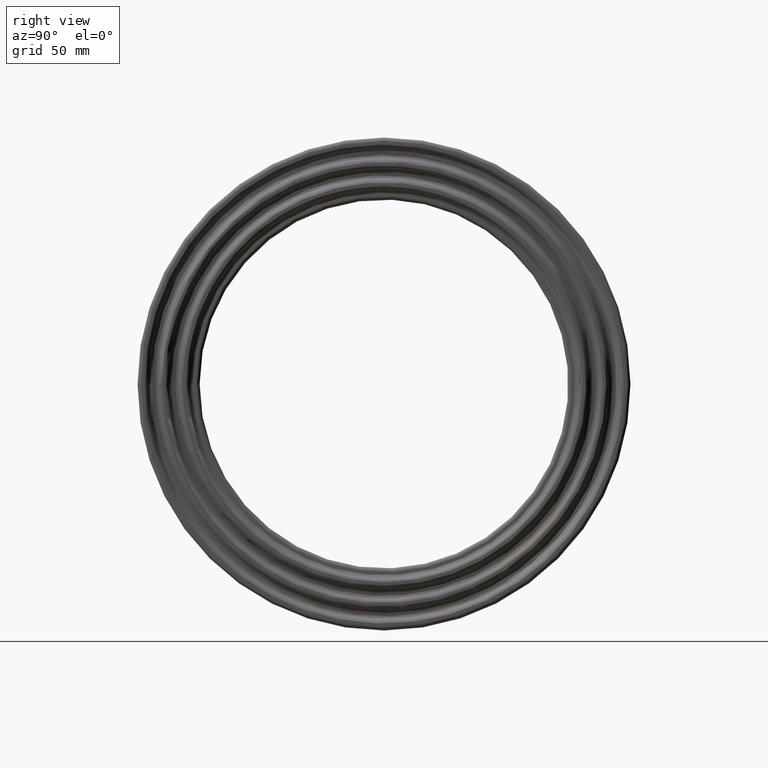
[diagram: clean part render]
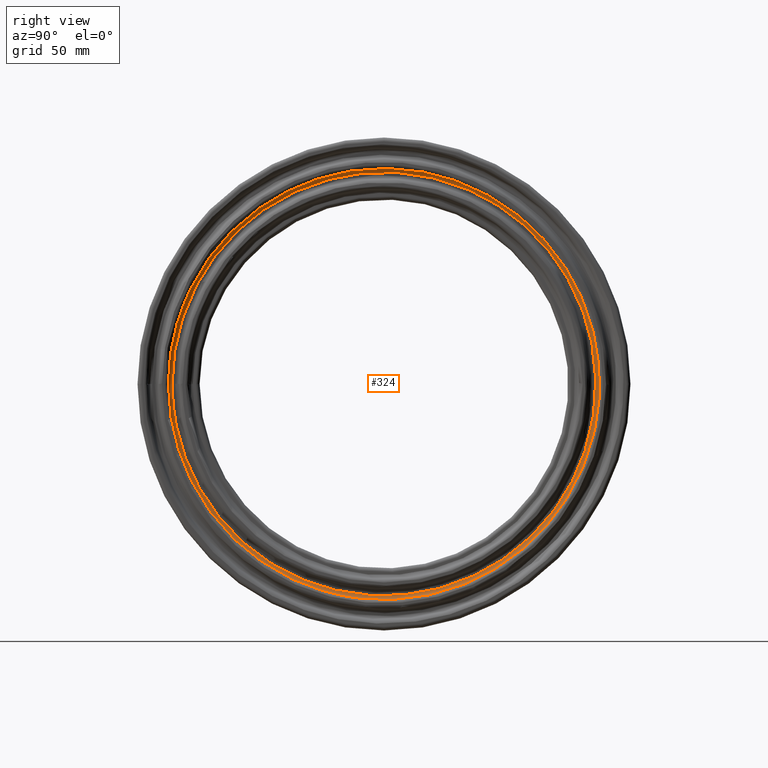
[diagram: same view with one face highlighted and labeled with its STEP entity id]
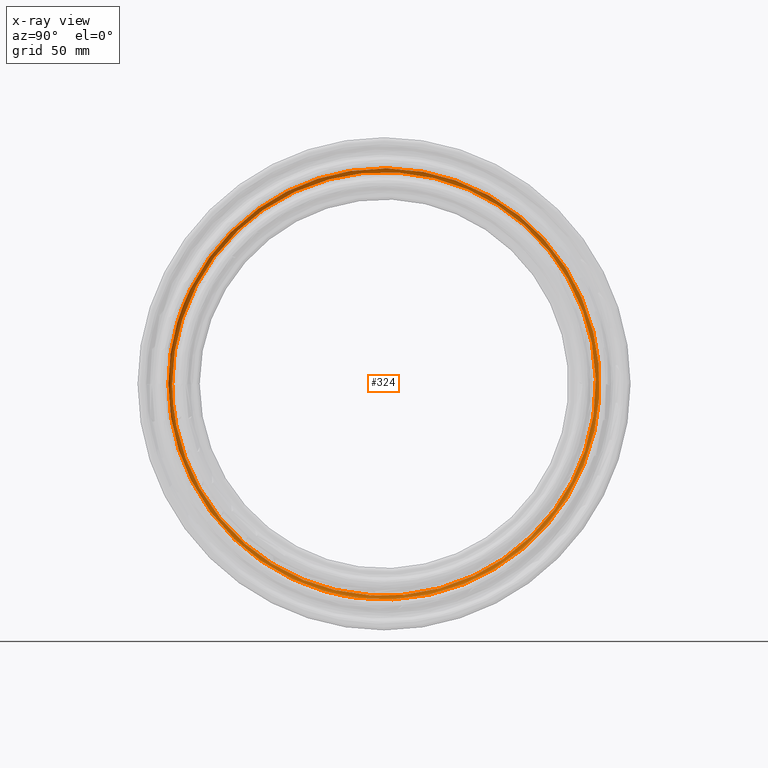
[diagram: x-ray of the same camera — body ghosted, the highlighted face saturated]
A machine part, right view. The second image highlights one B-rep face of the part: STEP entity #324.
The next image is the same camera in x-ray: the body ghosted, the highlighted face saturated — about 0% of this face is hidden behind the body in this view.
In plain terms, the highlighted face is a freeform B-spline surface patch.
Its self-contained STEP definition (entity closure, byte-faithful):
#19=B_SPLINE_SURFACE_WITH_KNOTS('',3,3,((#2032,#2033,#2034,#2035,#2036,
#2037,#2038,#2039,#2040,#2041,#2042,#2043,#2044,#2045,#2046,#2047,#2048,
#2049,#2050,#2051,#2052,#2053,#2054,#2055,#2056,#2057,#2058,#2059,#2060,
#2061,#2062,#2063,#2064,#2065,#2066,#2067,#2068,#2069,#2070,#2071,#2072,
#2073,#2074,#2075,#2076,#2077,#2078,#2079,#2080,#2081,#2082,#2083,#2084),
(#2085,#2086,#2087,#2088,#2089,#2090,#2091,#2092,#2093,#2094,#2095,#2096,
#2097,#2098,#2099,#2100,#2101,#2102,#2103,#2104,#2105,#2106,#2107,#2108,
#2109,#2110,#2111,#2112,#2113,#2114,#2115,#2116,#2117,#2118,#2119,#2120,
#2121,#2122,#2123,#2124,#2125,#2126,#2127,#2128,#2129,#2130,#2131,#2132,
#2133,#2134,#2135,#2136,#2137),(#2138,#2139,#2140,#2141,#2142,#2143,#2144,
#2145,#2146,#2147,#2148,#2149,#2150,#2151,#2152,#2153,#2154,#2155,#2156,
#2157,#2158,#2159,#2160,#2161,#2162,#2163,#2164,#2165,#2166,#2167,#2168,
#2169,#2170,#2171,#2172,#2173,#2174,#2175,#2176,#2177,#2178,#2179,#2180,
#2181,#2182,#2183,#2184,#2185,#2186,#2187,#2188,#2189,#2190),(#2191,#2192,
#2193,#2194,#2195,#2196,#2197,#2198,#2199,#2200,#2201,#2202,#2203,#2204,
#2205,#2206,#2207,#2208,#2209,#2210,#2211,#2212,#2213,#2214,#2215,#2216,
#2217,#2218,#2219,#2220,#2221,#2222,#2223,#2224,#2225,#2226,#2227,#2228,
#2229,#2230,#2231,#2232,#2233,#2234,#2235,#2236,#2237,#2238,#2239,#2240,
#2241,#2242,#2243),(#2244,#2245,#2246,#2247,#2248,#2249,#2250,#2251,#2252,
#2253,#2254,#2255,#2256,#2257,#2258,#2259,#2260,#2261,#2262,#2263,#2264,
#2265,#2266,#2267,#2268,#2269,#2270,#2271,#2272,#2273,#2274,#2275,#2276,
#2277,#2278,#2279,#2280,#2281,#2282,#2283,#2284,#2285,#2286,#2287,#2288,
#2289,#2290,#2291,#2292,#2293,#2294,#2295,#2296)),.UNSPECIFIED.,.F.,.T.,
 .F.,(4,1,4),(4,1,1,1,1,1,1,1,1,1,1,1,1,1,1,1,1,1,1,1,1,1,1,1,1,1,1,1,1,
1,1,1,1,1,1,1,1,1,1,1,1,1,1,1,1,1,1,1,1,1,4),(0.,0.571428571428571,1.),
(34.0904277767041,35.3079430544436,36.525458332183,37.7429736099224,38.9604888876619,
41.3955194431407,42.6130347208802,43.8305499986196,45.4539037022722,47.0772574059248,
50.3239648132299,51.9473185168825,53.5706722205351,55.1940259241876,56.8173796278402,
58.4407333314928,60.0640870351454,61.687440738798,63.3107944424505,66.5575018497557,
68.5866939793214,68.9925324052346,69.8042092570608,71.4275629607134,73.050916664366,
73.9640531226706,75.4859472198449,77.9209777753237,80.3560083308026,80.8125765599549,
81.573523608542,82.7910388862815,84.0085541640209,85.2260694417603,87.6610999972392,
88.1176682263915,88.8786152749786,90.0961305527181,90.7048881915878,91.6180246498923,
92.5311611081969,93.7486763859364,94.9661916636758,95.8793281219804,97.4012222191547,
97.7056010385895,98.6187374968941,99.8362527746335,101.053768052373,101.358146871808,
102.271283330112),.UNSPECIFIED.);
#32=B_SPLINE_CURVE_WITH_KNOTS('',3,(#1979,#1980,#1981,#1982,#1983,#1984,
#1985,#1986,#1987,#1988,#1989,#1990,#1991,#1992,#1993,#1994,#1995,#1996,
#1997,#1998,#1999,#2000,#2001,#2002,#2003,#2004,#2005,#2006,#2007,#2008,
#2009,#2010,#2011,#2012,#2013,#2014,#2015,#2016,#2017,#2018,#2019,#2020,
#2021,#2022,#2023,#2024,#2025,#2026,#2027,#2028,#2029,#2030,#2031),
 .UNSPECIFIED.,.T.,.F.,(4,1,1,1,1,1,1,1,1,1,1,1,1,1,1,1,1,1,1,1,1,1,1,1,
1,1,1,1,1,1,1,1,1,1,1,1,1,1,1,1,1,1,1,1,1,1,1,1,1,1,4),(-102.271283330112,
-101.358146871808,-101.053768052373,-99.8362527746335,-98.6187374968941,
-97.7056010385895,-97.4012222191547,-95.8793281219804,-94.9661916636758,
-93.7486763859364,-92.5311611081969,-91.6180246498923,-90.7048881915878,
-90.0961305527181,-88.8786152749786,-88.1176682263915,-87.6610999972392,
-85.2260694417603,-84.0085541640209,-82.7910388862815,-81.573523608542,
-80.8125765599549,-80.3560083308026,-77.9209777753237,-75.4859472198449,
-73.9640531226706,-73.050916664366,-71.4275629607134,-69.8042092570608,
-68.9925324052346,-68.5866939793214,-66.5575018497557,-63.3107944424505,
-61.687440738798,-60.0640870351454,-58.4407333314928,-56.8173796278402,
-55.1940259241876,-53.5706722205351,-51.9473185168825,-50.3239648132299,
-47.0772574059248,-45.4539037022722,-43.8305499986196,-42.6130347208802,
-41.3955194431407,-38.9604888876619,-37.7429736099224,-36.525458332183,
-35.3079430544436,-34.0904277767041),.UNSPECIFIED.);
#33=B_SPLINE_CURVE_WITH_KNOTS('',3,(#2299,#2300,#2301,#2302,#2303,#2304,
#2305,#2306,#2307,#2308,#2309,#2310,#2311,#2312,#2313,#2314,#2315,#2316,
#2317,#2318,#2319,#2320,#2321,#2322,#2323,#2324,#2325,#2326,#2327,#2328,
#2329,#2330,#2331,#2332,#2333,#2334,#2335,#2336,#2337,#2338,#2339,#2340,
#2341,#2342,#2343,#2344,#2345,#2346,#2347,#2348,#2349,#2350,#2351),
 .UNSPECIFIED.,.T.,.F.,(4,1,1,1,1,1,1,1,1,1,1,1,1,1,1,1,1,1,1,1,1,1,1,1,
1,1,1,1,1,1,1,1,1,1,1,1,1,1,1,1,1,1,1,1,1,1,1,1,1,1,4),(34.0904277767041,
35.3079430544436,36.525458332183,37.7429736099224,38.9604888876619,41.3955194431407,
42.6130347208802,43.8305499986196,45.4539037022722,47.0772574059248,50.3239648132299,
51.9473185168825,53.5706722205351,55.1940259241876,56.8173796278402,58.4407333314928,
60.0640870351454,61.687440738798,63.3107944424505,66.5575018497557,68.5866939793214,
68.9925324052346,69.8042092570608,71.4275629607134,73.050916664366,73.9640531226706,
75.4859472198449,77.9209777753237,80.3560083308026,80.8125765599549,81.573523608542,
82.7910388862815,84.0085541640209,85.2260694417603,87.6610999972392,88.1176682263915,
88.8786152749786,90.0961305527181,90.7048881915878,91.6180246498923,92.5311611081969,
93.7486763859364,94.9661916636758,95.8793281219804,97.4012222191547,97.7056010385895,
98.6187374968941,99.8362527746335,101.053768052373,101.358146871808,102.271283330112),
 .UNSPECIFIED.);
#85=FACE_OUTER_BOUND('',#128,.T.);
#128=EDGE_LOOP('',(#275,#276,#277,#278));
#162=CIRCLE('',#367,2.);
#189=VERTEX_POINT('',#1978);
#190=VERTEX_POINT('',#2297);
#221=EDGE_CURVE('',#189,#189,#32,.T.);
#222=EDGE_CURVE('',#190,#189,#162,.T.);
#223=EDGE_CURVE('',#190,#190,#33,.T.);
#275=ORIENTED_EDGE('',*,*,#222,.T.);
#276=ORIENTED_EDGE('',*,*,#221,.T.);
#277=ORIENTED_EDGE('',*,*,#222,.F.);
#278=ORIENTED_EDGE('',*,*,#223,.T.);
#324=ADVANCED_FACE('',(#85),#19,.T.);
#367=AXIS2_PLACEMENT_3D('',#2298,#447,#448);
#447=DIRECTION('center_axis',(0.,0.000811828910619315,-0.999999670466856));
#448=DIRECTION('ref_axis',(-0.287499999999997,-0.957780322104062,-0.000777554011736176));
#1978=CARTESIAN_POINT('',(111.15,-109.168841474338,-0.0886264508534605));
#1979=CARTESIAN_POINT('Ctrl Pts',(111.15,-109.16887591291,-0.0895965793287595));
#1980=CARTESIAN_POINT('Ctrl Pts',(111.15,-109.171631321727,2.96140961954504));
#1981=CARTESIAN_POINT('Ctrl Pts',(111.15,-109.004792948213,7.0175129122078));
#1982=CARTESIAN_POINT('Ctrl Pts',(111.15,-108.214436784486,15.1470235877692));
#1983=CARTESIAN_POINT('Ctrl Pts',(111.15,-106.679459658127,24.2482437736506));
#1984=CARTESIAN_POINT('Ctrl Pts',(111.15,-103.559112007756,35.0999990597832));
#1985=CARTESIAN_POINT('Ctrl Pts',(111.15,-100.551405436859,42.6687414845524));
#1986=CARTESIAN_POINT('Ctrl Pts',(111.15,-96.709254301766,50.9631286523638));
#1987=CARTESIAN_POINT('Ctrl Pts',(111.15,-92.1420336413871,58.9867920651236));
#1988=CARTESIAN_POINT('Ctrl Pts',(111.15,-84.8808077823255,68.9340455537768));
#1989=CARTESIAN_POINT('Ctrl Pts',(111.15,-77.3948497113888,77.3145567069677));
#1990=CARTESIAN_POINT('Ctrl Pts',(111.15,-69.066058781977,84.7710607713095));
#1991=CARTESIAN_POINT('Ctrl Pts',(111.15,-60.7844068656253,90.8387780654039));
#1992=CARTESIAN_POINT('Ctrl Pts',(111.15,-53.7876253662689,95.103383610369));
#1993=CARTESIAN_POINT('Ctrl Pts',(111.15,-45.6015238905392,99.3351265943354));
#1994=CARTESIAN_POINT('Ctrl Pts',(111.15,-37.6288582107189,102.640937455331));
#1995=CARTESIAN_POINT('Ctrl Pts',(111.15,-29.8363051923592,105.073551239788));
#1996=CARTESIAN_POINT('Ctrl Pts',(111.15,-17.9053212126133,108.073474884191));
#1997=CARTESIAN_POINT('Ctrl Pts',(111.15,-4.09296624297072,109.624520185606));
#1998=CARTESIAN_POINT('Ctrl Pts',(111.15,12.1474790744606,108.719164500908));
#1999=CARTESIAN_POINT('Ctrl Pts',(111.15,24.3144827624396,106.666244799854));
#2000=CARTESIAN_POINT('Ctrl Pts',(111.15,34.6533144891553,103.685292905554));
#2001=CARTESIAN_POINT('Ctrl Pts',(111.15,42.2396793899263,100.726071712331));
#2002=CARTESIAN_POINT('Ctrl Pts',(111.15,53.3354144125283,95.6891300776241));
#2003=CARTESIAN_POINT('Ctrl Pts',(111.15,68.6861442492095,86.0318606918334));
#2004=CARTESIAN_POINT('Ctrl Pts',(111.15,83.8290461583626,70.8839953486793));
#2005=CARTESIAN_POINT('Ctrl Pts',(111.15,93.1829519940372,57.3337550858414));
#2006=CARTESIAN_POINT('Ctrl Pts',(111.15,99.6014552819226,45.3024599026849));
#2007=CARTESIAN_POINT('Ctrl Pts',(111.15,104.687630762219,32.3644484848804));
#2008=CARTESIAN_POINT('Ctrl Pts',(111.15,107.752156601661,18.9839568497214));
#2009=CARTESIAN_POINT('Ctrl Pts',(111.15,108.814094828951,9.48564711740224));
#2010=CARTESIAN_POINT('Ctrl Pts',(111.15,109.422117919237,-1.34366554618123));
#2011=CARTESIAN_POINT('Ctrl Pts',(111.15,108.358370742038,-20.3899659848908));
#2012=CARTESIAN_POINT('Ctrl Pts',(111.15,101.526208206616,-42.6354029094756));
#2013=CARTESIAN_POINT('Ctrl Pts',(111.15,90.6689184932715,-61.5376257442843));
#2014=CARTESIAN_POINT('Ctrl Pts',(111.15,80.403213928584,-74.4491353992946));
#2015=CARTESIAN_POINT('Ctrl Pts',(111.15,68.5045660594396,-85.5152466485039));
#2016=CARTESIAN_POINT('Ctrl Pts',(111.15,54.9239507164761,-94.8291793569609));
#2017=CARTESIAN_POINT('Ctrl Pts',(111.15,40.157429046716,-101.943661568741));
#2018=CARTESIAN_POINT('Ctrl Pts',(111.15,24.6097107524258,-106.786117798739));
#2019=CARTESIAN_POINT('Ctrl Pts',(111.15,8.27612409188528,-109.25750009136));
#2020=CARTESIAN_POINT('Ctrl Pts',(111.15,-13.4184792688284,-109.30402582933));
#2021=CARTESIAN_POINT('Ctrl Pts',(111.15,-35.0532223187035,-104.401784084591));
#2022=CARTESIAN_POINT('Ctrl Pts',(111.15,-54.611633262714,-94.9858590797643));
#2023=CARTESIAN_POINT('Ctrl Pts',(111.15,-67.1164071878208,-86.514870850833));
#2024=CARTESIAN_POINT('Ctrl Pts',(111.15,-77.2792388215684,-77.4215567204984));
#2025=CARTESIAN_POINT('Ctrl Pts',(111.15,-88.1411809633085,-65.3246056855826));
#2026=CARTESIAN_POINT('Ctrl Pts',(111.15,-96.9806857545178,-51.2892190430878));
#2027=CARTESIAN_POINT('Ctrl Pts',(111.15,-103.208770295654,-36.2597169320003));
#2028=CARTESIAN_POINT('Ctrl Pts',(111.15,-106.626682831724,-24.4845972595928));
#2029=CARTESIAN_POINT('Ctrl Pts',(111.15,-108.703154939149,-12.3253679681634));
#2030=CARTESIAN_POINT('Ctrl Pts',(111.15,-109.165202034488,-4.15760484449382));
#2031=CARTESIAN_POINT('Ctrl Pts',(111.15,-109.16887591291,-0.0895965793287595));
#2032=CARTESIAN_POINT('Ctrl Pts',(111.15,-109.16887591291,-0.0895965793287595));
#2033=CARTESIAN_POINT('Ctrl Pts',(111.15,-109.165202034488,-4.15760484449382));
#2034=CARTESIAN_POINT('Ctrl Pts',(111.15,-108.703154939149,-12.3253679681634));
#2035=CARTESIAN_POINT('Ctrl Pts',(111.15,-106.626682831724,-24.4845972595928));
#2036=CARTESIAN_POINT('Ctrl Pts',(111.15,-103.208770295654,-36.2597169320003));
#2037=CARTESIAN_POINT('Ctrl Pts',(111.15,-96.9806857545178,-51.2892190430878));
#2038=CARTESIAN_POINT('Ctrl Pts',(111.15,-88.1411809633085,-65.3246056855826));
#2039=CARTESIAN_POINT('Ctrl Pts',(111.15,-77.2792388215684,-77.4215567204984));
#2040=CARTESIAN_POINT('Ctrl Pts',(111.15,-67.1164071878208,-86.514870850833));
#2041=CARTESIAN_POINT('Ctrl Pts',(111.15,-54.611633262714,-94.9858590797643));
#2042=CARTESIAN_POINT('Ctrl Pts',(111.15,-35.0532223187035,-104.401784084591));
#2043=CARTESIAN_POINT('Ctrl Pts',(111.15,-13.4184792688284,-109.30402582933));
#2044=CARTESIAN_POINT('Ctrl Pts',(111.15,8.27612409188528,-109.25750009136));
#2045=CARTESIAN_POINT('Ctrl Pts',(111.15,24.6097107524258,-106.786117798739));
#2046=CARTESIAN_POINT('Ctrl Pts',(111.15,40.157429046716,-101.943661568741));
#2047=CARTESIAN_POINT('Ctrl Pts',(111.15,54.9239507164761,-94.8291793569609));
#2048=CARTESIAN_POINT('Ctrl Pts',(111.15,68.5045660594396,-85.5152466485039));
#2049=CARTESIAN_POINT('Ctrl Pts',(111.15,80.403213928584,-74.4491353992946));
#2050=CARTESIAN_POINT('Ctrl Pts',(111.15,90.6689184932715,-61.5376257442843));
#2051=CARTESIAN_POINT('Ctrl Pts',(111.15,101.526208206616,-42.6354029094756));
#2052=CARTESIAN_POINT('Ctrl Pts',(111.15,108.358370742038,-20.3899659848908));
#2053=CARTESIAN_POINT('Ctrl Pts',(111.15,109.422117919237,-1.34366554618123));
#2054=CARTESIAN_POINT('Ctrl Pts',(111.15,108.814094828951,9.48564711740224));
#2055=CARTESIAN_POINT('Ctrl Pts',(111.15,107.752156601661,18.9839568497214));
#2056=CARTESIAN_POINT('Ctrl Pts',(111.15,104.687630762219,32.3644484848804));
#2057=CARTESIAN_POINT('Ctrl Pts',(111.15,99.6014552819226,45.3024599026849));
#2058=CARTESIAN_POINT('Ctrl Pts',(111.15,93.1829519940372,57.3337550858414));
#2059=CARTESIAN_POINT('Ctrl Pts',(111.15,83.8290461583626,70.8839953486793));
#2060=CARTESIAN_POINT('Ctrl Pts',(111.15,68.6861442492095,86.0318606918334));
#2061=CARTESIAN_POINT('Ctrl Pts',(111.15,53.3354144125283,95.6891300776241));
#2062=CARTESIAN_POINT('Ctrl Pts',(111.15,42.2396793899263,100.726071712331));
#2063=CARTESIAN_POINT('Ctrl Pts',(111.15,34.6533144891553,103.685292905554));
#2064=CARTESIAN_POINT('Ctrl Pts',(111.15,24.3144827624396,106.666244799854));
#2065=CARTESIAN_POINT('Ctrl Pts',(111.15,12.1474790744606,108.719164500908));
#2066=CARTESIAN_POINT('Ctrl Pts',(111.15,-4.09296624297072,109.624520185606));
#2067=CARTESIAN_POINT('Ctrl Pts',(111.15,-17.9053212126133,108.073474884191));
#2068=CARTESIAN_POINT('Ctrl Pts',(111.15,-29.8363051923592,105.073551239788));
#2069=CARTESIAN_POINT('Ctrl Pts',(111.15,-37.6288582107189,102.640937455331));
#2070=CARTESIAN_POINT('Ctrl Pts',(111.15,-45.6015238905392,99.3351265943354));
#2071=CARTESIAN_POINT('Ctrl Pts',(111.15,-53.7876253662689,95.103383610369));
#2072=CARTESIAN_POINT('Ctrl Pts',(111.15,-60.7844068656253,90.8387780654039));
#2073=CARTESIAN_POINT('Ctrl Pts',(111.15,-69.066058781977,84.7710607713095));
#2074=CARTESIAN_POINT('Ctrl Pts',(111.15,-77.3948497113888,77.3145567069677));
#2075=CARTESIAN_POINT('Ctrl Pts',(111.15,-84.8808077823255,68.9340455537768));
#2076=CARTESIAN_POINT('Ctrl Pts',(111.15,-92.1420336413871,58.9867920651236));
#2077=CARTESIAN_POINT('Ctrl Pts',(111.15,-96.709254301766,50.9631286523638));
#2078=CARTESIAN_POINT('Ctrl Pts',(111.15,-100.551405436859,42.6687414845524));
#2079=CARTESIAN_POINT('Ctrl Pts',(111.15,-103.559112007756,35.0999990597832));
#2080=CARTESIAN_POINT('Ctrl Pts',(111.15,-106.679459658127,24.2482437736506));
#2081=CARTESIAN_POINT('Ctrl Pts',(111.15,-108.214436784486,15.1470235877692));
#2082=CARTESIAN_POINT('Ctrl Pts',(111.15,-109.004792948213,7.0175129122078));
#2083=CARTESIAN_POINT('Ctrl Pts',(111.15,-109.171631321727,2.96140961954504));
#2084=CARTESIAN_POINT('Ctrl Pts',(111.15,-109.16887591291,-0.0895965793287595));
#2085=CARTESIAN_POINT('Ctrl Pts',(111.15,-109.656183480015,-0.0899987452847484));
#2086=CARTESIAN_POINT('Ctrl Pts',(111.15,-109.652493155543,-4.1761651810211));
#2087=CARTESIAN_POINT('Ctrl Pts',(111.15,-109.188382766517,-12.3803859556455));
#2088=CARTESIAN_POINT('Ctrl Pts',(111.15,-107.102643416477,-24.5938892490977));
#2089=CARTESIAN_POINT('Ctrl Pts',(111.15,-103.669473791703,-36.4215709198744));
#2090=CARTESIAN_POINT('Ctrl Pts',(111.15,-97.4135838009343,-51.5181702970054));
#2091=CARTESIAN_POINT('Ctrl Pts',(111.15,-88.5346303642198,-65.6161940331702));
#2092=CARTESIAN_POINT('Ctrl Pts',(111.15,-77.6241949829721,-77.7671535986577));
#2093=CARTESIAN_POINT('Ctrl Pts',(111.15,-67.415999752644,-86.9010556626526));
#2094=CARTESIAN_POINT('Ctrl Pts',(111.15,-54.8554124037621,-95.4098550601815));
#2095=CARTESIAN_POINT('Ctrl Pts',(111.15,-35.2096865639864,-104.867813335383));
#2096=CARTESIAN_POINT('Ctrl Pts',(111.15,-13.4783833768758,-109.791936174648));
#2097=CARTESIAN_POINT('Ctrl Pts',(111.15,8.31306907851147,-109.745203116326));
#2098=CARTESIAN_POINT('Ctrl Pts',(111.15,24.719564612131,-107.262788439275));
#2099=CARTESIAN_POINT('Ctrl Pts',(111.15,40.3366791120045,-102.398719198005));
#2100=CARTESIAN_POINT('Ctrl Pts',(111.15,55.1691266369913,-95.252473539364));
#2101=CARTESIAN_POINT('Ctrl Pts',(111.15,68.8103524667378,-85.8969718783374));
#2102=CARTESIAN_POINT('Ctrl Pts',(111.15,80.7621183639367,-74.7814601545337));
#2103=CARTESIAN_POINT('Ctrl Pts',(111.15,91.0736451154768,-61.8123182631806));
#2104=CARTESIAN_POINT('Ctrl Pts',(111.15,101.979402593613,-42.8257139854171));
#2105=CARTESIAN_POINT('Ctrl Pts',(111.15,108.842058170039,-20.4809871885158));
#2106=CARTESIAN_POINT('Ctrl Pts',(111.15,109.910556603869,-1.34966401808586));
#2107=CARTESIAN_POINT('Ctrl Pts',(111.15,109.299817505937,9.52799484597199));
#2108=CARTESIAN_POINT('Ctrl Pts',(111.15,108.233143102122,19.0686841848466));
#2109=CARTESIAN_POINT('Ctrl Pts',(111.15,105.154931956035,32.5089265674395));
#2110=CARTESIAN_POINT('Ctrl Pts',(111.15,100.046056996044,45.5046775013571));
#2111=CARTESIAN_POINT('Ctrl Pts',(111.15,93.5989000523668,57.5896832179096));
#2112=CARTESIAN_POINT('Ctrl Pts',(111.15,84.2032453278427,71.2004037781411));
#2113=CARTESIAN_POINT('Ctrl Pts',(111.15,68.9927372528521,86.415894900059));
#2114=CARTESIAN_POINT('Ctrl Pts',(111.15,53.5735005976631,96.1162623140809));
#2115=CARTESIAN_POINT('Ctrl Pts',(111.15,42.4282280965461,101.175692179586));
#2116=CARTESIAN_POINT('Ctrl Pts',(111.15,34.8080002688927,104.148123642621));
#2117=CARTESIAN_POINT('Ctrl Pts',(111.15,24.423008780702,107.142381204488));
#2118=CARTESIAN_POINT('Ctrl Pts',(111.15,12.2017142351026,109.204465293409));
#2119=CARTESIAN_POINT('Ctrl Pts',(111.15,-4.11125321688205,110.113858992419));
#2120=CARTESIAN_POINT('Ctrl Pts',(111.15,-17.9852290484309,108.555897170556));
#2121=CARTESIAN_POINT('Ctrl Pts',(111.15,-29.9694923189367,105.542576509371));
#2122=CARTESIAN_POINT('Ctrl Pts',(111.15,-37.7968178043873,103.099108798979));
#2123=CARTESIAN_POINT('Ctrl Pts',(111.15,-45.8050858419878,99.7785351518076));
#2124=CARTESIAN_POINT('Ctrl Pts',(111.15,-54.0277213160074,95.5279064858295));
#2125=CARTESIAN_POINT('Ctrl Pts',(111.15,-61.055737856423,91.2442614439337));
#2126=CARTESIAN_POINT('Ctrl Pts',(111.15,-69.374352554712,85.1494651775801));
#2127=CARTESIAN_POINT('Ctrl Pts',(111.15,-77.7403253292645,77.6596703892888));
#2128=CARTESIAN_POINT('Ctrl Pts',(111.15,-85.2596985432959,69.2417548965162));
#2129=CARTESIAN_POINT('Ctrl Pts',(111.15,-92.5533392182668,59.2500898856718));
#2130=CARTESIAN_POINT('Ctrl Pts',(111.15,-97.1409412605437,51.1906277123933));
#2131=CARTESIAN_POINT('Ctrl Pts',(111.15,-101.000246892078,42.8592025016923));
#2132=CARTESIAN_POINT('Ctrl Pts',(111.15,-104.021379149854,35.2566796090329));
#2133=CARTESIAN_POINT('Ctrl Pts',(111.15,-107.155654701634,24.3564790588372));
#2134=CARTESIAN_POINT('Ctrl Pts',(111.15,-108.697483280616,15.2146438365411));
#2135=CARTESIAN_POINT('Ctrl Pts',(111.15,-109.491367895312,7.04883455357198));
#2136=CARTESIAN_POINT('Ctrl Pts',(111.15,-109.65895122337,2.97462608151752));
#2137=CARTESIAN_POINT('Ctrl Pts',(111.15,-109.656183480015,-0.0899987452847484));
#2138=CARTESIAN_POINT('Ctrl Pts',(111.476352007421,-110.504781913302,-0.0906924250226332));
#2139=CARTESIAN_POINT('Ctrl Pts',(111.476352007421,-110.501063088995,-4.208481294274));
#2140=CARTESIAN_POINT('Ctrl Pts',(111.47635200742,-110.033362097227,-12.4761942105846));
#2141=CARTESIAN_POINT('Ctrl Pts',(111.47635200742,-107.931479653986,-24.784217286139));
#2142=CARTESIAN_POINT('Ctrl Pts',(111.47635200742,-104.471741975731,-36.7034297285657));
#2143=CARTESIAN_POINT('Ctrl Pts',(111.47635200742,-98.1674451264239,-51.9168466005646));
#2144=CARTESIAN_POINT('Ctrl Pts',(111.47635200742,-89.2197685304833,-66.1239885812321));
#2145=CARTESIAN_POINT('Ctrl Pts',(111.47635200742,-78.2249100848555,-78.3689681847956));
#2146=CARTESIAN_POINT('Ctrl Pts',(111.47635200742,-67.9377149782059,-87.5735584254747));
#2147=CARTESIAN_POINT('Ctrl Pts',(111.47635200742,-55.2799180686087,-96.1482070349182));
#2148=CARTESIAN_POINT('Ctrl Pts',(111.47635200742,-35.4821722122109,-105.67935464943));
#2149=CARTESIAN_POINT('Ctrl Pts',(111.476352007421,-13.5826803152488,-110.641585792354));
#2150=CARTESIAN_POINT('Ctrl Pts',(111.47635200742,8.37739900093661,-110.594490626453));
#2151=CARTESIAN_POINT('Ctrl Pts',(111.47635200742,24.9108609579816,-108.092866041036));
#2152=CARTESIAN_POINT('Ctrl Pts',(111.476352007421,40.6488390018886,-103.191151710319));
#2153=CARTESIAN_POINT('Ctrl Pts',(111.47635200742,55.5960567089909,-95.9896106123937));
#2154=CARTESIAN_POINT('Ctrl Pts',(111.476352007421,69.3428614820518,-86.5617011322915));
#2155=CARTESIAN_POINT('Ctrl Pts',(111.47635200742,81.3871125937303,-75.3601741223867));
#2156=CARTESIAN_POINT('Ctrl Pts',(111.476352007421,91.7784396459215,-62.2906650356776));
#2157=CARTESIAN_POINT('Ctrl Pts',(111.47635200742,102.768589900881,-43.1571360169868));
#2158=CARTESIAN_POINT('Ctrl Pts',(111.476352007421,109.684359091733,-20.6394780732205));
#2159=CARTESIAN_POINT('Ctrl Pts',(111.47635200742,110.76112268387,-1.3601079061553));
#2160=CARTESIAN_POINT('Ctrl Pts',(111.47635200742,110.145659655336,9.60172211731091));
#2161=CARTESIAN_POINT('Ctrl Pts',(111.47635200742,109.070725408479,19.2162679271939));
#2162=CARTESIAN_POINT('Ctrl Pts',(111.47635200742,105.968700248317,32.7604917239782));
#2163=CARTESIAN_POINT('Ctrl Pts',(111.476352007421,100.820283901426,45.8568296153193));
#2164=CARTESIAN_POINT('Ctrl Pts',(111.47635200742,94.3232376964953,58.0353511559324));
#2165=CARTESIAN_POINT('Ctrl Pts',(111.476352007421,84.8548663095022,71.7514078055943));
#2166=CARTESIAN_POINT('Ctrl Pts',(111.47635200742,69.5266626319092,87.0846362869293));
#2167=CARTESIAN_POINT('Ctrl Pts',(111.476352007421,53.9880811023839,96.8600847476613));
#2168=CARTESIAN_POINT('Ctrl Pts',(111.47635200742,42.7565689964475,101.958662653985));
#2169=CARTESIAN_POINT('Ctrl Pts',(111.476352007421,35.0773690364628,104.954095785891));
#2170=CARTESIAN_POINT('Ctrl Pts',(111.47635200742,24.6120227316355,107.971525937268));
#2171=CARTESIAN_POINT('Ctrl Pts',(111.47635200742,12.2961256885356,110.049567195757));
#2172=CARTESIAN_POINT('Ctrl Pts',(111.47635200742,-4.1430479363136,110.966002593785));
#2173=CARTESIAN_POINT('Ctrl Pts',(111.47635200742,-18.1244341274235,109.395975312409));
#2174=CARTESIAN_POINT('Ctrl Pts',(111.47635200742,-30.2014128436752,106.359342908336));
#2175=CARTESIAN_POINT('Ctrl Pts',(111.47635200742,-38.0893267516056,103.896959900745));
#2176=CARTESIAN_POINT('Ctrl Pts',(111.47635200742,-46.1595509328963,100.5506972074));
#2177=CARTESIAN_POINT('Ctrl Pts',(111.47635200742,-54.4458279783578,96.2671691512032));
#2178=CARTESIAN_POINT('Ctrl Pts',(111.47635200742,-61.5282288022288,91.9503781630418));
#2179=CARTESIAN_POINT('Ctrl Pts',(111.47635200742,-69.911224981603,85.8084083424885));
#2180=CARTESIAN_POINT('Ctrl Pts',(111.476352007421,-78.3419348687875,78.2606601898421));
#2181=CARTESIAN_POINT('Ctrl Pts',(111.47635200742,-85.9194992122814,69.7775950944385));
#2182=CARTESIAN_POINT('Ctrl Pts',(111.476352007421,-93.2695805788678,59.7086187157346));
#2183=CARTESIAN_POINT('Ctrl Pts',(111.47635200742,-97.8926920199631,51.5867649757546));
#2184=CARTESIAN_POINT('Ctrl Pts',(111.47635200742,-101.781858812309,43.190882278711));
#2185=CARTESIAN_POINT('Ctrl Pts',(111.47635200742,-104.826370891754,35.5295194987215));
#2186=CARTESIAN_POINT('Ctrl Pts',(111.47635200742,-107.984902593411,24.5449719437494));
#2187=CARTESIAN_POINT('Ctrl Pts',(111.47635200742,-109.538663418169,15.3323768658311));
#2188=CARTESIAN_POINT('Ctrl Pts',(111.47635200742,-110.338691102159,7.1033874044893));
#2189=CARTESIAN_POINT('Ctrl Pts',(111.47635200742,-110.507571031533,2.99764922691589));
#2190=CARTESIAN_POINT('Ctrl Pts',(111.476352007421,-110.504781913302,-0.0906924250226332));
#2191=CARTESIAN_POINT('Ctrl Pts',(112.22495013648,-110.979362064494,-0.0910840883064642));
#2192=CARTESIAN_POINT('Ctrl Pts',(112.22495013648,-110.97562722365,-4.22655687585566));
#2193=CARTESIAN_POINT('Ctrl Pts',(112.22495013648,-110.505916826573,-12.5297752476833));
#2194=CARTESIAN_POINT('Ctrl Pts',(112.22495013648,-108.395009181768,-24.8906548050625));
#2195=CARTESIAN_POINT('Ctrl Pts',(112.22495013648,-104.920412896744,-36.8610564406755));
#2196=CARTESIAN_POINT('Ctrl Pts',(112.22495013648,-98.5890368136889,-52.1398181477659));
#2197=CARTESIAN_POINT('Ctrl Pts',(112.22495013648,-89.6029418894481,-66.4079612706941));
#2198=CARTESIAN_POINT('Ctrl Pts',(112.22495013648,-78.5608567388843,-78.7055388239663));
#2199=CARTESIAN_POINT('Ctrl Pts',(112.22495013648,-68.2294828348911,-87.9496569282985));
#2200=CARTESIAN_POINT('Ctrl Pts',(112.22495013648,-55.5173302294683,-96.5611291599514));
#2201=CARTESIAN_POINT('Ctrl Pts',(112.22495013648,-35.6345499481648,-106.13321222821));
#2202=CARTESIAN_POINT('Ctrl Pts',(112.22495013648,-13.6410198611474,-111.116752978268));
#2203=CARTESIAN_POINT('Ctrl Pts',(112.22495013648,8.4133790656569,-111.069455906939));
#2204=CARTESIAN_POINT('Ctrl Pts',(112.22495013648,25.0178456738436,-108.557087078731));
#2205=CARTESIAN_POINT('Ctrl Pts',(112.22495013648,40.8234074424673,-103.634324222944));
#2206=CARTESIAN_POINT('Ctrl Pts',(112.22495013648,55.8348291696996,-96.4018492677373));
#2207=CARTESIAN_POINT('Ctrl Pts',(112.22495013648,69.6406614102808,-86.9334565289047));
#2208=CARTESIAN_POINT('Ctrl Pts',(112.22495013648,81.7366432246821,-75.6838192759021));
#2209=CARTESIAN_POINT('Ctrl Pts',(112.22495013648,92.1725956868232,-62.5581831827426));
#2210=CARTESIAN_POINT('Ctrl Pts',(112.22495013648,103.209947835168,-43.3424765785554));
#2211=CARTESIAN_POINT('Ctrl Pts',(112.22495013648,110.155413652974,-20.7281220026854));
#2212=CARTESIAN_POINT('Ctrl Pts',(112.22495013648,111.236804410577,-1.3659497112824));
#2213=CARTESIAN_POINT('Ctrl Pts',(112.22495013648,110.618696309734,9.64296381778432));
#2214=CARTESIAN_POINT('Ctrl Pts',(112.22495013648,109.539149586899,19.2987823621379));
#2215=CARTESIAN_POINT('Ctrl Pts',(112.22495013648,106.423796547871,32.9011963571541));
#2216=CARTESIAN_POINT('Ctrl Pts',(112.22495013648,101.253273584353,46.0537657277022));
#2217=CARTESIAN_POINT('Ctrl Pts',(112.22495013648,94.7283220936449,58.2845950016091));
#2218=CARTESIAN_POINT('Ctrl Pts',(112.22495013648,85.2192922104901,72.0595523321642));
#2219=CARTESIAN_POINT('Ctrl Pts',(112.22495013648,69.8252480881171,87.4586403577815));
#2220=CARTESIAN_POINT('Ctrl Pts',(112.22495013648,54.2199489967516,97.2760612151442));
#2221=CARTESIAN_POINT('Ctrl Pts',(112.22495013648,42.9401932198344,102.396540010503));
#2222=CARTESIAN_POINT('Ctrl Pts',(112.22495013648,35.2280147596046,105.40483838907));
#2223=CARTESIAN_POINT('Ctrl Pts',(112.22495013648,24.7177142817617,108.435226692537));
#2224=CARTESIAN_POINT('Ctrl Pts',(112.22495013648,12.3489443497301,110.52219298524));
#2225=CARTESIAN_POINT('Ctrl Pts',(112.22495013648,-4.16085730193788,111.442560931881));
#2226=CARTESIAN_POINT('Ctrl Pts',(112.22495013648,-18.2022549357503,109.865797777809));
#2227=CARTESIAN_POINT('Ctrl Pts',(112.22495013648,-30.3311214134291,106.816118255191));
#2228=CARTESIAN_POINT('Ctrl Pts',(112.22495013648,-38.2528996015804,104.343164804856));
#2229=CARTESIAN_POINT('Ctrl Pts',(112.22495013648,-46.3577962908253,100.982524894341));
#2230=CARTESIAN_POINT('Ctrl Pts',(112.22495013648,-54.6796531425617,96.680604410984));
#2231=CARTESIAN_POINT('Ctrl Pts',(112.22495013648,-61.7924732173306,92.3452711947585));
#2232=CARTESIAN_POINT('Ctrl Pts',(112.22495013648,-70.2114667887776,86.1769296487375));
#2233=CARTESIAN_POINT('Ctrl Pts',(112.22495013648,-78.6783874137832,78.5967602506234));
#2234=CARTESIAN_POINT('Ctrl Pts',(112.22495013648,-86.2884941690657,70.0772677379048));
#2235=CARTESIAN_POINT('Ctrl Pts',(112.22495013648,-93.6701437479408,59.9650397653995));
#2236=CARTESIAN_POINT('Ctrl Pts',(112.22495013648,-98.3131042508136,51.8083222587968));
#2237=CARTESIAN_POINT('Ctrl Pts',(112.22495013648,-102.218977503202,43.3763688658597));
#2238=CARTESIAN_POINT('Ctrl Pts',(112.22495013648,-105.276564619679,35.682107892724));
#2239=CARTESIAN_POINT('Ctrl Pts',(112.22495013648,-108.448660455871,24.6503803564046));
#2240=CARTESIAN_POINT('Ctrl Pts',(112.22495013648,-110.00909378801,15.3982310237328));
#2241=CARTESIAN_POINT('Ctrl Pts',(112.22495013648,-110.812557767702,7.13389099113114));
#2242=CARTESIAN_POINT('Ctrl Pts',(112.22495013648,-110.982163195128,3.01052050235543));
#2243=CARTESIAN_POINT('Ctrl Pts',(112.22495013648,-110.979362064494,-0.0910840883064642));
#2244=CARTESIAN_POINT('Ctrl Pts',(112.575,-111.084437161404,-0.091168709974274));
#2245=CARTESIAN_POINT('Ctrl Pts',(112.575,-111.080698818279,-4.23055738394302));
#2246=CARTESIAN_POINT('Ctrl Pts',(112.575,-110.610544288441,-12.5416383754182));
#2247=CARTESIAN_POINT('Ctrl Pts',(112.575,-108.497636800792,-24.9142228768143));
#2248=CARTESIAN_POINT('Ctrl Pts',(112.575,-105.019750936701,-36.8959578757259));
#2249=CARTESIAN_POINT('Ctrl Pts',(112.575,-98.682383623349,-52.1891792161946));
#2250=CARTESIAN_POINT('Ctrl Pts',(112.575,-89.6877740672303,-66.4708415717545));
#2251=CARTESIAN_POINT('Ctrl Pts',(112.575,-78.6352399158527,-78.7800550343417));
#2252=CARTESIAN_POINT('Ctrl Pts',(112.575,-68.2940834043431,-88.0329274638967));
#2253=CARTESIAN_POINT('Ctrl Pts',(112.575,-55.5698910767679,-96.6525541820683));
#2254=CARTESIAN_POINT('Ctrl Pts',(112.575,-35.66829317793,-106.233698265201));
#2255=CARTESIAN_POINT('Ctrl Pts',(112.575,-13.6539302495785,-111.221958522436));
#2256=CARTESIAN_POINT('Ctrl Pts',(112.575,8.4213433447682,-111.174616408004));
#2257=CARTESIAN_POINT('Ctrl Pts',(112.575,25.041531707435,-108.659869336637));
#2258=CARTESIAN_POINT('Ctrl Pts',(112.575,40.8620622517185,-103.732443636869));
#2259=CARTESIAN_POINT('Ctrl Pts',(112.575,55.8876886933204,-96.4931252360737));
#2260=CARTESIAN_POINT('Ctrl Pts',(112.575,69.7065999815717,-87.0157630847632));
#2261=CARTESIAN_POINT('Ctrl Pts',(112.575,81.8140306981808,-75.7554773173749));
#2262=CARTESIAN_POINT('Ctrl Pts',(112.575,92.2598652283749,-62.6174123612512));
#2263=CARTESIAN_POINT('Ctrl Pts',(112.575,103.307665316263,-43.3835165539951));
#2264=CARTESIAN_POINT('Ctrl Pts',(112.575,110.259710242034,-20.7477440454612));
#2265=CARTESIAN_POINT('Ctrl Pts',(112.575,111.342122747183,-1.36724253760553));
#2266=CARTESIAN_POINT('Ctrl Pts',(112.575,110.723430815066,9.65208959363952));
#2267=CARTESIAN_POINT('Ctrl Pts',(112.575,109.642859001056,19.3170639901981));
#2268=CARTESIAN_POINT('Ctrl Pts',(112.575,106.524560628977,32.9323400458045));
#2269=CARTESIAN_POINT('Ctrl Pts',(112.575,101.349139193076,46.0973717850812));
#2270=CARTESIAN_POINT('Ctrl Pts',(112.575,94.8180118988623,58.339777347724));
#2271=CARTESIAN_POINT('Ctrl Pts',(112.575,85.2999752210314,72.1277805712793));
#2272=CARTESIAN_POINT('Ctrl Pts',(112.575,69.8913642822268,87.5414420363237));
#2273=CARTESIAN_POINT('Ctrl Pts',(112.575,54.2712787068764,97.368165314966));
#2274=CARTESIAN_POINT('Ctrl Pts',(112.575,42.9808493645324,102.493489010271));
#2275=CARTESIAN_POINT('Ctrl Pts',(112.575,35.2613682573396,105.504634979636));
#2276=CARTESIAN_POINT('Ctrl Pts',(112.575,24.7411234195629,108.53789295371));
#2277=CARTESIAN_POINT('Ctrl Pts',(112.575,12.3606281060627,110.626834766311));
#2278=CARTESIAN_POINT('Ctrl Pts',(112.575,-4.16478458369159,111.548076519736));
#2279=CARTESIAN_POINT('Ctrl Pts',(112.575,-18.219501780746,109.969815381856));
#2280=CARTESIAN_POINT('Ctrl Pts',(112.575,-30.359836002279,106.917252764728));
#2281=CARTESIAN_POINT('Ctrl Pts',(112.575,-38.2891231627097,104.441954463653));
#2282=CARTESIAN_POINT('Ctrl Pts',(112.575,-46.4016833801969,101.078137297039));
#2283=CARTESIAN_POINT('Ctrl Pts',(112.575,-54.7314245025936,96.7721408886797));
#2284=CARTESIAN_POINT('Ctrl Pts',(112.575,-61.8509769235359,92.4327052874945));
#2285=CARTESIAN_POINT('Ctrl Pts',(112.575,-70.2779450882397,86.2585191485194));
#2286=CARTESIAN_POINT('Ctrl Pts',(112.575,-78.7528794034634,78.6711775160936));
#2287=CARTESIAN_POINT('Ctrl Pts',(112.575,-86.370191865188,70.1436154541766));
#2288=CARTESIAN_POINT('Ctrl Pts',(112.575,-93.7588287904153,60.0218197880713));
#2289=CARTESIAN_POINT('Ctrl Pts',(112.575,-98.4061894250972,51.8573669921114));
#2290=CARTESIAN_POINT('Ctrl Pts',(112.575,-102.31575790569,43.417440113409));
#2291=CARTESIAN_POINT('Ctrl Pts',(112.575,-105.37624001454,35.715890699766));
#2292=CARTESIAN_POINT('Ctrl Pts',(112.575,-108.551339690073,24.673722150417));
#2293=CARTESIAN_POINT('Ctrl Pts',(112.575,-110.113250708312,15.4128049395704));
#2294=CARTESIAN_POINT('Ctrl Pts',(112.575,-110.917475070526,7.14064760314437));
#2295=CARTESIAN_POINT('Ctrl Pts',(112.575,-111.087240918747,3.01337279550228));
#2296=CARTESIAN_POINT('Ctrl Pts',(112.575,-111.084437161404,-0.091168709974274));
#2297=CARTESIAN_POINT('',(112.575,-111.084402118547,-0.0901815588769328));
#2298=CARTESIAN_POINT('Origin',(113.15,-109.168841474338,-0.0886264508534605));
#2299=CARTESIAN_POINT('Ctrl Pts',(112.575,-111.084437161404,-0.091168709974274));
#2300=CARTESIAN_POINT('Ctrl Pts',(112.575,-111.080698818279,-4.23055738394302));
#2301=CARTESIAN_POINT('Ctrl Pts',(112.575,-110.610544288441,-12.5416383754182));
#2302=CARTESIAN_POINT('Ctrl Pts',(112.575,-108.497636800792,-24.9142228768143));
#2303=CARTESIAN_POINT('Ctrl Pts',(112.575,-105.019750936701,-36.8959578757259));
#2304=CARTESIAN_POINT('Ctrl Pts',(112.575,-98.682383623349,-52.1891792161946));
#2305=CARTESIAN_POINT('Ctrl Pts',(112.575,-89.6877740672303,-66.4708415717545));
#2306=CARTESIAN_POINT('Ctrl Pts',(112.575,-78.6352399158527,-78.7800550343417));
#2307=CARTESIAN_POINT('Ctrl Pts',(112.575,-68.2940834043431,-88.0329274638967));
#2308=CARTESIAN_POINT('Ctrl Pts',(112.575,-55.5698910767679,-96.6525541820683));
#2309=CARTESIAN_POINT('Ctrl Pts',(112.575,-35.66829317793,-106.233698265201));
#2310=CARTESIAN_POINT('Ctrl Pts',(112.575,-13.6539302495785,-111.221958522436));
#2311=CARTESIAN_POINT('Ctrl Pts',(112.575,8.4213433447682,-111.174616408004));
#2312=CARTESIAN_POINT('Ctrl Pts',(112.575,25.041531707435,-108.659869336637));
#2313=CARTESIAN_POINT('Ctrl Pts',(112.575,40.8620622517185,-103.732443636869));
#2314=CARTESIAN_POINT('Ctrl Pts',(112.575,55.8876886933204,-96.4931252360737));
#2315=CARTESIAN_POINT('Ctrl Pts',(112.575,69.7065999815717,-87.0157630847632));
#2316=CARTESIAN_POINT('Ctrl Pts',(112.575,81.8140306981808,-75.7554773173749));
#2317=CARTESIAN_POINT('Ctrl Pts',(112.575,92.2598652283749,-62.6174123612512));
#2318=CARTESIAN_POINT('Ctrl Pts',(112.575,103.307665316263,-43.3835165539951));
#2319=CARTESIAN_POINT('Ctrl Pts',(112.575,110.259710242034,-20.7477440454612));
#2320=CARTESIAN_POINT('Ctrl Pts',(112.575,111.342122747183,-1.36724253760553));
#2321=CARTESIAN_POINT('Ctrl Pts',(112.575,110.723430815066,9.65208959363952));
#2322=CARTESIAN_POINT('Ctrl Pts',(112.575,109.642859001056,19.3170639901981));
#2323=CARTESIAN_POINT('Ctrl Pts',(112.575,106.524560628977,32.9323400458045));
#2324=CARTESIAN_POINT('Ctrl Pts',(112.575,101.349139193076,46.0973717850812));
#2325=CARTESIAN_POINT('Ctrl Pts',(112.575,94.8180118988623,58.339777347724));
#2326=CARTESIAN_POINT('Ctrl Pts',(112.575,85.2999752210314,72.1277805712793));
#2327=CARTESIAN_POINT('Ctrl Pts',(112.575,69.8913642822268,87.5414420363237));
#2328=CARTESIAN_POINT('Ctrl Pts',(112.575,54.2712787068764,97.368165314966));
#2329=CARTESIAN_POINT('Ctrl Pts',(112.575,42.9808493645324,102.493489010271));
#2330=CARTESIAN_POINT('Ctrl Pts',(112.575,35.2613682573396,105.504634979636));
#2331=CARTESIAN_POINT('Ctrl Pts',(112.575,24.7411234195629,108.53789295371));
#2332=CARTESIAN_POINT('Ctrl Pts',(112.575,12.3606281060627,110.626834766311));
#2333=CARTESIAN_POINT('Ctrl Pts',(112.575,-4.16478458369159,111.548076519736));
#2334=CARTESIAN_POINT('Ctrl Pts',(112.575,-18.219501780746,109.969815381856));
#2335=CARTESIAN_POINT('Ctrl Pts',(112.575,-30.359836002279,106.917252764728));
#2336=CARTESIAN_POINT('Ctrl Pts',(112.575,-38.2891231627097,104.441954463653));
#2337=CARTESIAN_POINT('Ctrl Pts',(112.575,-46.4016833801969,101.078137297039));
#2338=CARTESIAN_POINT('Ctrl Pts',(112.575,-54.7314245025936,96.7721408886797));
#2339=CARTESIAN_POINT('Ctrl Pts',(112.575,-61.8509769235359,92.4327052874945));
#2340=CARTESIAN_POINT('Ctrl Pts',(112.575,-70.2779450882397,86.2585191485194));
#2341=CARTESIAN_POINT('Ctrl Pts',(112.575,-78.7528794034634,78.6711775160936));
#2342=CARTESIAN_POINT('Ctrl Pts',(112.575,-86.370191865188,70.1436154541766));
#2343=CARTESIAN_POINT('Ctrl Pts',(112.575,-93.7588287904153,60.0218197880713));
#2344=CARTESIAN_POINT('Ctrl Pts',(112.575,-98.4061894250972,51.8573669921114));
#2345=CARTESIAN_POINT('Ctrl Pts',(112.575,-102.31575790569,43.417440113409));
#2346=CARTESIAN_POINT('Ctrl Pts',(112.575,-105.37624001454,35.715890699766));
#2347=CARTESIAN_POINT('Ctrl Pts',(112.575,-108.551339690073,24.673722150417));
#2348=CARTESIAN_POINT('Ctrl Pts',(112.575,-110.113250708312,15.4128049395704));
#2349=CARTESIAN_POINT('Ctrl Pts',(112.575,-110.917475070526,7.14064760314437));
#2350=CARTESIAN_POINT('Ctrl Pts',(112.575,-111.087240918747,3.01337279550228));
#2351=CARTESIAN_POINT('Ctrl Pts',(112.575,-111.084437161404,-0.091168709974274));